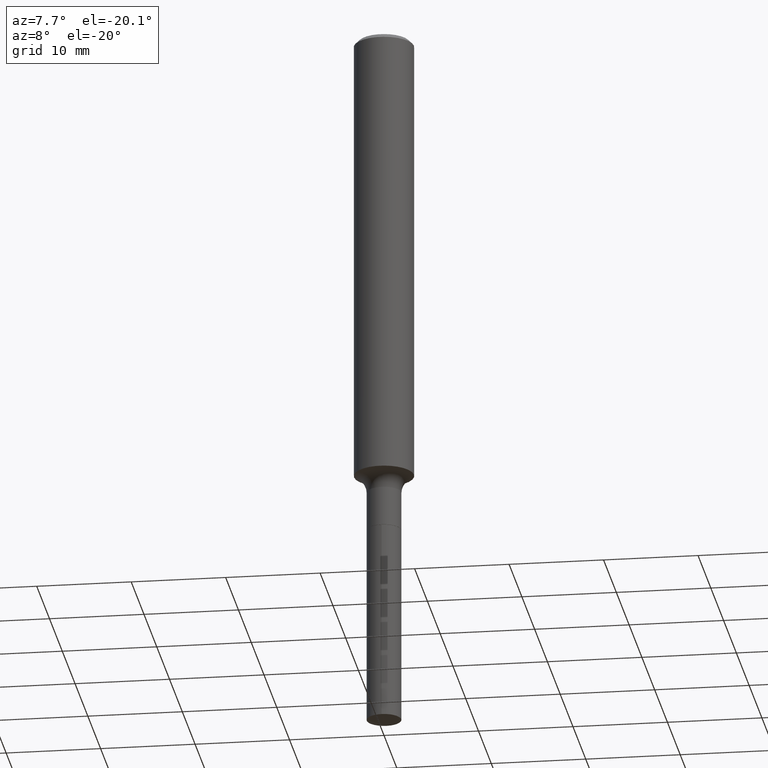
[diagram: clean part render]
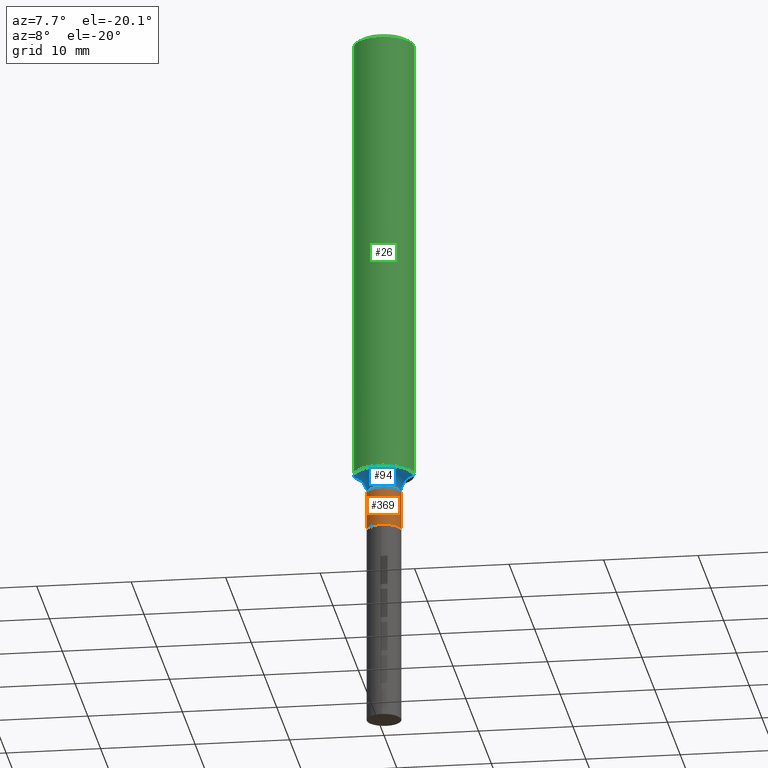
[diagram: same view with three faces highlighted in distinct colors, each labeled with its STEP entity id]
A machine part, auxiliary view with three faces highlighted in distinct colors.
Their STEP definitions:

[orange] entity #369 — the highlighted cylindrical surface (edge-blend (fillet) strip) has radius 1.8288 mm, axis along (-0, 0, 1).
#9 = VECTOR ( 'NONE', #38, 39.37007874015748143 ) ;
#18 = ORIENTED_EDGE ( 'NONE', *, *, #66, .F. ) ;
#28 = EDGE_CURVE ( 'NONE', #275, #53, #290, .T. ) ;
#32 = CARTESIAN_POINT ( 'NONE',  ( 5.241862386057841075E-29, -7.483990249810284778E-15, -2.143500000000000405 ) ) ;
#38 = DIRECTION ( 'NONE',  ( -2.445468806185136877E-29, 3.491481338843145188E-15, 1.000000000000000000 ) ) ;
#53 = VERTEX_POINT ( 'NONE', #292 ) ;
#61 = EDGE_CURVE ( 'NONE', #275, #244, #298, .T. ) ;
#66 = EDGE_CURVE ( 'NONE', #244, #474, #322, .T. ) ;
#124 = FACE_OUTER_BOUND ( 'NONE', #432, .T. ) ;
#164 = AXIS2_PLACEMENT_3D ( 'NONE', #453, #170, #254 ) ;
#170 = DIRECTION ( 'NONE',  ( -2.445468806185136597E-29, 3.491481338843145583E-15, 1.000000000000000000 ) ) ;
#172 = CARTESIAN_POINT ( 'NONE',  ( -0.07199999999999998068, 5.115907697472719966E-16, -3.541633264983530975E-30 ) ) ;
#195 = DIRECTION ( 'NONE',  ( 1.000000000000000000, -6.982962677686266711E-15, 4.876176775795935232E-29 ) ) ;
#204 = ORIENTED_EDGE ( 'NONE', *, *, #28, .T. ) ;
#209 = DIRECTION ( 'NONE',  ( -2.445468806185136877E-29, 3.491481338843145188E-15, 1.000000000000000000 ) ) ;
#237 = ORIENTED_EDGE ( 'NONE', *, *, #343, .T. ) ;
#238 = LINE ( 'NONE', #368, #315 ) ;
#241 = AXIS2_PLACEMENT_3D ( 'NONE', #407, #331, #195 ) ;
#244 = VERTEX_POINT ( 'NONE', #267 ) ;
#254 = DIRECTION ( 'NONE',  ( 1.000000000000000000, -6.982962677686266711E-15, 0.000000000000000000 ) ) ;
#267 = CARTESIAN_POINT ( 'NONE',  ( -0.07199999999999998068, -6.684177695541511301E-15, -1.978400000000000158 ) ) ;
#275 = VERTEX_POINT ( 'NONE', #312 ) ;
#290 = CIRCLE ( 'NONE', #308, 0.07199999999999998068 ) ;
#292 = CARTESIAN_POINT ( 'NONE',  ( 0.07199999999999998068, -7.986763562603695160E-15, -2.143500000000000405 ) ) ;
#298 = LINE ( 'NONE', #172, #9 ) ;
#308 = AXIS2_PLACEMENT_3D ( 'NONE', #32, #377, #375 ) ;
#312 = CARTESIAN_POINT ( 'NONE',  ( -0.07199999999999999456, -6.684177695541511301E-15, -2.143500000000000405 ) ) ;
#315 = VECTOR ( 'NONE', #209, 39.37007874015748143 ) ;
#322 = CIRCLE ( 'NONE', #164, 0.07199999999999998068 ) ;
#331 = DIRECTION ( 'NONE',  ( -2.445468806185136597E-29, 3.491481338843145583E-15, 1.000000000000000000 ) ) ;
#343 = EDGE_CURVE ( 'NONE', #53, #474, #238, .T. ) ;
#357 = CARTESIAN_POINT ( 'NONE',  ( 0.07199999999999998068, -7.410319993560691805E-15, -1.978400000000000158 ) ) ;
#368 = CARTESIAN_POINT ( 'NONE',  ( 0.07199999999999998068, -5.027733127934110730E-16, 3.510847278573072426E-30 ) ) ;
#369 = ADVANCED_FACE ( 'NONE', ( #124 ), #396, .T. ) ;
#375 = DIRECTION ( 'NONE',  ( 1.000000000000000000, -6.982962677686266711E-15, 0.000000000000000000 ) ) ;
#377 = DIRECTION ( 'NONE',  ( -2.445468806185136597E-29, 3.491481338843145583E-15, 1.000000000000000000 ) ) ;
#396 = CYLINDRICAL_SURFACE ( 'NONE', #241, 0.07199999999999998068 ) ;
#407 = CARTESIAN_POINT ( 'NONE',  ( 0.000000000000000000, 0.000000000000000000, 0.000000000000000000 ) ) ;
#432 = EDGE_LOOP ( 'NONE', ( #456, #204, #237, #18 ) ) ;
#453 = CARTESIAN_POINT ( 'NONE',  ( 4.838115486156674596E-29, -6.907546680767279844E-15, -1.978400000000000158 ) ) ;
#456 = ORIENTED_EDGE ( 'NONE', *, *, #61, .F. ) ;
#474 = VERTEX_POINT ( 'NONE', #357 ) ;

[blue] entity #94 — the highlighted toroidal blend (fillet) surface has major radius 3.81 mm and minor (blend) radius 1.9812 mm.
#21 = ORIENTED_EDGE ( 'NONE', *, *, #414, .T. ) ;
#23 = ORIENTED_EDGE ( 'NONE', *, *, #66, .T. ) ;
#51 = DIRECTION ( 'NONE',  ( 1.000000000000000000, -6.982962677686264344E-15, 0.000000000000000000 ) ) ;
#66 = EDGE_CURVE ( 'NONE', #244, #474, #322, .T. ) ;
#76 = DIRECTION ( 'NONE',  ( 1.000000000000000000, -6.982962677686269866E-15, 0.000000000000000000 ) ) ;
#94 = ADVANCED_FACE ( 'NONE', ( #140 ), #373, .F. ) ;
#100 = DIRECTION ( 'NONE',  ( -2.445468806185136597E-29, 3.491481338843145583E-15, 1.000000000000000000 ) ) ;
#107 = AXIS2_PLACEMENT_3D ( 'NONE', #180, #135, #288 ) ;
#123 = CIRCLE ( 'NONE', #182, 0.07800000000000001377 ) ;
#133 = ORIENTED_EDGE ( 'NONE', *, *, #194, .F. ) ;
#135 = DIRECTION ( 'NONE',  ( -2.445468806185136597E-29, 3.491481338843145583E-15, 1.000000000000000000 ) ) ;
#140 = FACE_OUTER_BOUND ( 'NONE', #151, .T. ) ;
#147 = CARTESIAN_POINT ( 'NONE',  ( 0.1250000000000002776, -7.522448756679282148E-15, -1.904514954151736550 ) ) ;
#151 = EDGE_LOOP ( 'NONE', ( #354, #21, #23, #133 ) ) ;
#164 = AXIS2_PLACEMENT_3D ( 'NONE', #453, #170, #254 ) ;
#168 = DIRECTION ( 'NONE',  ( -1.000000000000000000, 7.105427357601009747E-15, 0.000000000000000000 ) ) ;
#170 = DIRECTION ( 'NONE',  ( -2.445468806185136597E-29, 3.491481338843145583E-15, 1.000000000000000000 ) ) ;
#171 = CARTESIAN_POINT ( 'NONE',  ( -0.1499999999999999944, -5.841732577127129408E-15, -1.978400000000000158 ) ) ;
#174 = CIRCLE ( 'NONE', #404, 0.07800000000000001377 ) ;
#180 = CARTESIAN_POINT ( 'NONE',  ( 4.838115486156674596E-29, -6.907546680767279844E-15, -1.978400000000000158 ) ) ;
#182 = AXIS2_PLACEMENT_3D ( 'NONE', #171, #431, #168 ) ;
#184 = DIRECTION ( 'NONE',  ( -6.982962677686266711E-15, -1.000000000000000000, 3.491481338843145583E-15 ) ) ;
#194 = EDGE_CURVE ( 'NONE', #318, #474, #174, .T. ) ;
#244 = VERTEX_POINT ( 'NONE', #267 ) ;
#254 = DIRECTION ( 'NONE',  ( 1.000000000000000000, -6.982962677686266711E-15, 0.000000000000000000 ) ) ;
#267 = CARTESIAN_POINT ( 'NONE',  ( -0.07199999999999998068, -6.684177695541511301E-15, -1.978400000000000158 ) ) ;
#288 = DIRECTION ( 'NONE',  ( 1.000000000000000000, -6.982962677686264344E-15, 4.883557194083111780E-29 ) ) ;
#318 = VERTEX_POINT ( 'NONE', #147 ) ;
#322 = CIRCLE ( 'NONE', #164, 0.07199999999999998068 ) ;
#327 = CARTESIAN_POINT ( 'NONE',  ( -0.1250000000000002776, -5.761400002268369633E-15, -1.904514954151736550 ) ) ;
#353 = CARTESIAN_POINT ( 'NONE',  ( 4.657431911291187376E-29, -6.649578421968497231E-15, -1.904514954151736550 ) ) ;
#354 = ORIENTED_EDGE ( 'NONE', *, *, #360, .F. ) ;
#357 = CARTESIAN_POINT ( 'NONE',  ( 0.07199999999999998068, -7.410319993560691805E-15, -1.978400000000000158 ) ) ;
#360 = EDGE_CURVE ( 'NONE', #475, #318, #468, .T. ) ;
#373 = TOROIDAL_SURFACE ( 'NONE', #107, 0.1499999999999999944, 0.07800000000000002764 ) ;
#404 = AXIS2_PLACEMENT_3D ( 'NONE', #463, #184, #76 ) ;
#414 = EDGE_CURVE ( 'NONE', #475, #244, #123, .T. ) ;
#431 = DIRECTION ( 'NONE',  ( 7.105427357601001859E-15, 1.000000000000000000, -3.491481338843145583E-15 ) ) ;
#453 = CARTESIAN_POINT ( 'NONE',  ( 4.838115486156674596E-29, -6.907546680767279844E-15, -1.978400000000000158 ) ) ;
#461 = AXIS2_PLACEMENT_3D ( 'NONE', #353, #100, #51 ) ;
#463 = CARTESIAN_POINT ( 'NONE',  ( 0.1499999999999999944, -7.954991082420219851E-15, -1.978400000000000158 ) ) ;
#468 = CIRCLE ( 'NONE', #461, 0.1250000000000002498 ) ;
#474 = VERTEX_POINT ( 'NONE', #357 ) ;
#475 = VERTEX_POINT ( 'NONE', #327 ) ;

[green] entity #26 — the highlighted cylindrical surface (edge-blend (fillet) strip) has radius 3.175 mm, axis along (-0, 0, 1).
#1 = AXIS2_PLACEMENT_3D ( 'NONE', #87, #394, #33 ) ;
#10 = DIRECTION ( 'NONE',  ( -2.445468806185136877E-29, 3.491481338843145188E-15, 1.000000000000000000 ) ) ;
#26 = ADVANCED_FACE ( 'NONE', ( #69 ), #370, .T. ) ;
#33 = DIRECTION ( 'NONE',  ( 1.000000000000000000, -6.982962677686266711E-15, 0.000000000000000000 ) ) ;
#47 = ORIENTED_EDGE ( 'NONE', *, *, #360, .T. ) ;
#51 = DIRECTION ( 'NONE',  ( 1.000000000000000000, -6.982962677686264344E-15, 0.000000000000000000 ) ) ;
#58 = VECTOR ( 'NONE', #440, 39.37007874015748143 ) ;
#69 = FACE_OUTER_BOUND ( 'NONE', #439, .T. ) ;
#87 = CARTESIAN_POINT ( 'NONE',  ( 4.585254011597165626E-31, -6.546527510330947764E-17, -0.01875000000000014155 ) ) ;
#100 = DIRECTION ( 'NONE',  ( -2.445468806185136597E-29, 3.491481338843145583E-15, 1.000000000000000000 ) ) ;
#110 = DIRECTION ( 'NONE',  ( -2.445468806185136597E-29, 3.491481338843145583E-15, 1.000000000000000000 ) ) ;
#134 = CARTESIAN_POINT ( 'NONE',  ( -0.1250000000000001110, 8.881784197001260212E-16, -6.148668862818637832E-30 ) ) ;
#147 = CARTESIAN_POINT ( 'NONE',  ( 0.1250000000000002776, -7.522448756679282148E-15, -1.904514954151736550 ) ) ;
#149 = CARTESIAN_POINT ( 'NONE',  ( -0.1250000000000000000, -2.469343428835775195E-15, -0.01875000000000014155 ) ) ;
#167 = DIRECTION ( 'NONE',  ( 1.000000000000000000, -6.982962677686267499E-15, 4.876176775795936353E-29 ) ) ;
#185 = ORIENTED_EDGE ( 'NONE', *, *, #293, .T. ) ;
#189 = VERTEX_POINT ( 'NONE', #149 ) ;
#191 = LINE ( 'NONE', #311, #281 ) ;
#205 = VERTEX_POINT ( 'NONE', #307 ) ;
#206 = CIRCLE ( 'NONE', #1, 0.1250000000000000000 ) ;
#240 = AXIS2_PLACEMENT_3D ( 'NONE', #416, #110, #167 ) ;
#243 = ORIENTED_EDGE ( 'NONE', *, *, #387, .F. ) ;
#262 = ORIENTED_EDGE ( 'NONE', *, *, #480, .F. ) ;
#281 = VECTOR ( 'NONE', #10, 39.37007874015748143 ) ;
#293 = EDGE_CURVE ( 'NONE', #318, #205, #191, .T. ) ;
#307 = CARTESIAN_POINT ( 'NONE',  ( 0.1250000000000000000, -9.383356098140928781E-16, -0.01875000000000014155 ) ) ;
#311 = CARTESIAN_POINT ( 'NONE',  ( 0.1250000000000001110, -8.728703347107842263E-16, 6.095220969744926047E-30 ) ) ;
#318 = VERTEX_POINT ( 'NONE', #147 ) ;
#327 = CARTESIAN_POINT ( 'NONE',  ( -0.1250000000000002776, -5.761400002268369633E-15, -1.904514954151736550 ) ) ;
#353 = CARTESIAN_POINT ( 'NONE',  ( 4.657431911291187376E-29, -6.649578421968497231E-15, -1.904514954151736550 ) ) ;
#360 = EDGE_CURVE ( 'NONE', #475, #318, #468, .T. ) ;
#370 = CYLINDRICAL_SURFACE ( 'NONE', #240, 0.1250000000000001110 ) ;
#387 = EDGE_CURVE ( 'NONE', #189, #205, #206, .T. ) ;
#394 = DIRECTION ( 'NONE',  ( -2.445468806185136597E-29, 3.491481338843145583E-15, 1.000000000000000000 ) ) ;
#416 = CARTESIAN_POINT ( 'NONE',  ( 0.000000000000000000, 0.000000000000000000, 0.000000000000000000 ) ) ;
#439 = EDGE_LOOP ( 'NONE', ( #262, #47, #185, #243 ) ) ;
#440 = DIRECTION ( 'NONE',  ( -2.445468806185136877E-29, 3.491481338843145188E-15, 1.000000000000000000 ) ) ;
#461 = AXIS2_PLACEMENT_3D ( 'NONE', #353, #100, #51 ) ;
#468 = CIRCLE ( 'NONE', #461, 0.1250000000000002498 ) ;
#475 = VERTEX_POINT ( 'NONE', #327 ) ;
#479 = LINE ( 'NONE', #134, #58 ) ;
#480 = EDGE_CURVE ( 'NONE', #475, #189, #479, .T. ) ;